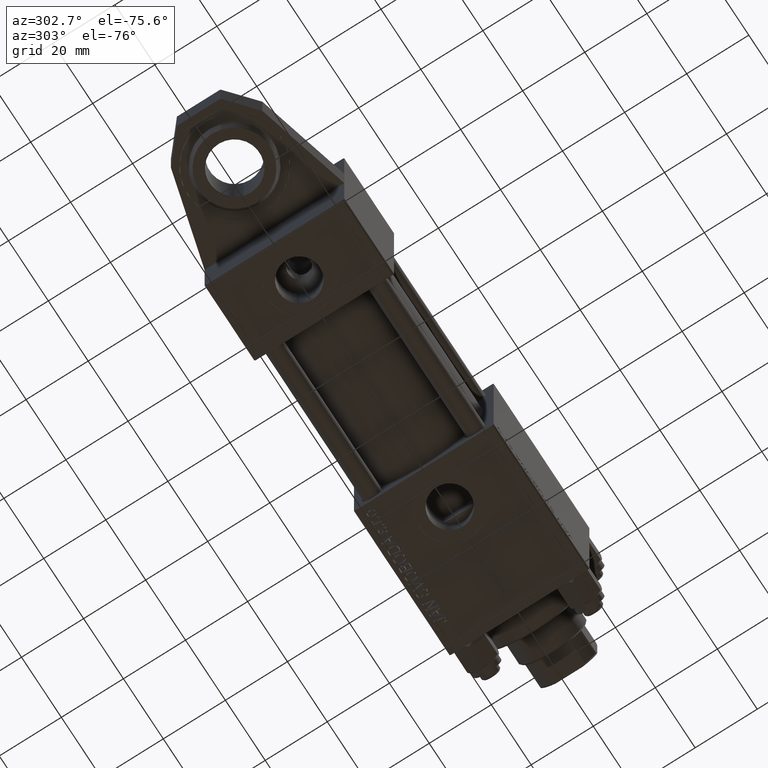
[diagram: clean part render]
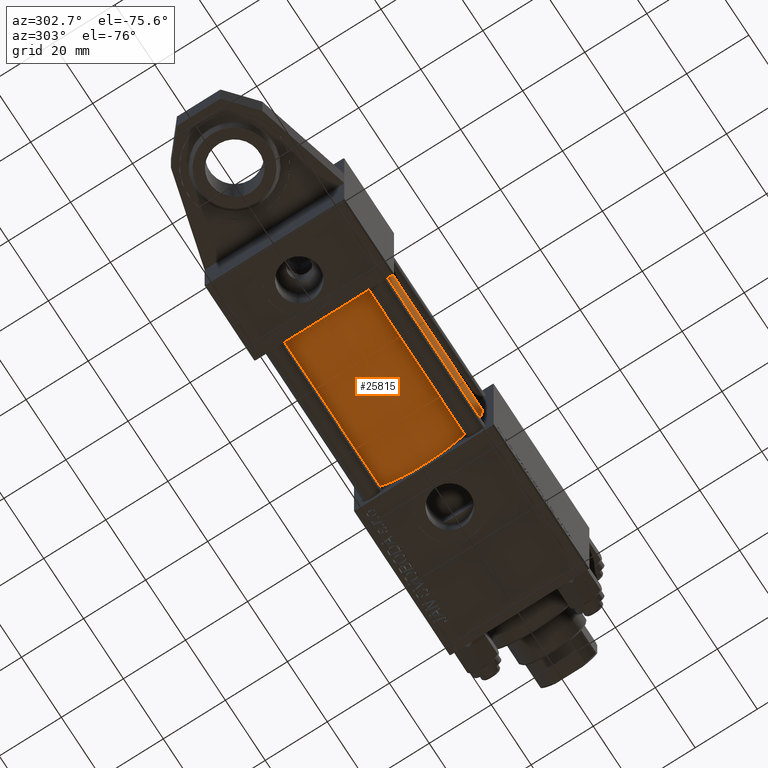
[diagram: same view with one face highlighted and labeled with its STEP entity id]
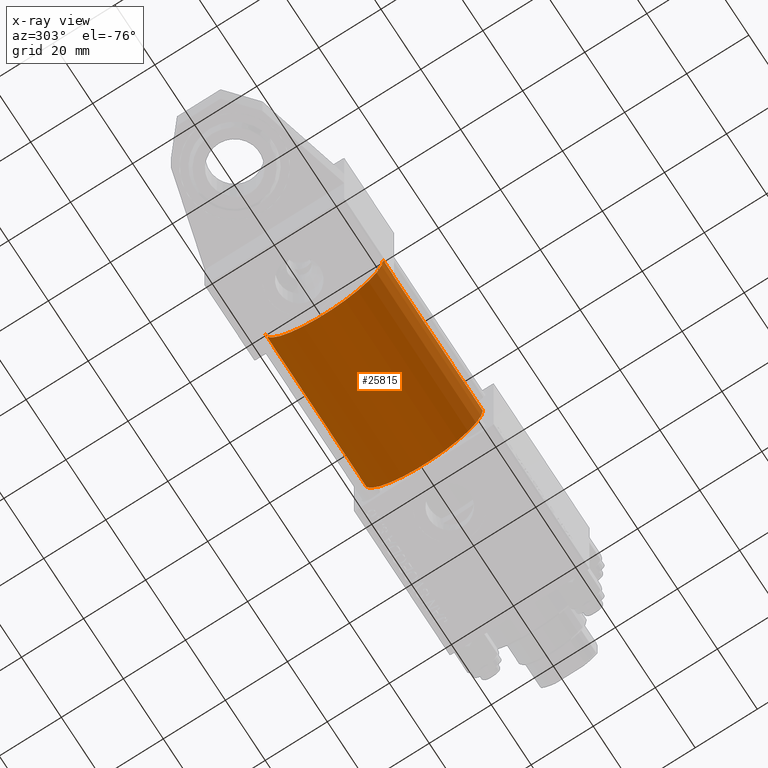
[diagram: x-ray of the same camera — body ghosted, the highlighted face saturated]
A machine part, auxiliary view. The second image highlights one B-rep face of the part: STEP entity #25815.
The next image is the same camera in x-ray: the body ghosted, the highlighted face saturated — about 0% of this face is hidden behind the body in this view.
In plain terms, the highlighted cylindrical surface (partial cylindrical patch) has radius 19 mm, axis along (-1, 0, -0).
Its self-contained STEP definition (entity closure, byte-faithful):
#763 = LINE ( 'NONE', #49076, #45956 ) ;
#1502 = ORIENTED_EDGE ( 'NONE', *, *, #31288, .T. ) ;
#4311 = DIRECTION ( 'NONE',  ( 0.000000000000000000, 0.000000000000000000, -1.000000000000000000 ) ) ;
#4671 = DIRECTION ( 'NONE',  ( 0.000000000000000000, 0.000000000000000000, 1.000000000000000000 ) ) ;
#4732 = CYLINDRICAL_SURFACE ( 'NONE', #33286, 19.00000000000000000 ) ;
#8436 = FACE_OUTER_BOUND ( 'NONE', #25541, .T. ) ;
#8514 = CARTESIAN_POINT ( 'NONE',  ( 75.00000000000001421, -2.602085213965210642E-15, 19.00000000000000000 ) ) ;
#9287 = CARTESIAN_POINT ( 'NONE',  ( 25.00000000000000000, -2.752562955852396712E-16, -19.00000000000000000 ) ) ;
#11199 = CARTESIAN_POINT ( 'NONE',  ( 75.00000000000001421, -2.602085213965210642E-15, 0.000000000000000000 ) ) ;
#11848 = AXIS2_PLACEMENT_3D ( 'NONE', #20756, #12858, #4671 ) ;
#12858 = DIRECTION ( 'NONE',  ( 1.000000000000000000, -0.000000000000000000, 0.000000000000000000 ) ) ;
#18771 = DIRECTION ( 'NONE',  ( 0.000000000000000000, 0.000000000000000000, 1.000000000000000000 ) ) ;
#20756 = CARTESIAN_POINT ( 'NONE',  ( 25.00000000000000000, -2.602085213965210642E-15, 0.000000000000000000 ) ) ;
#21540 = CARTESIAN_POINT ( 'NONE',  ( 25.00000000000000000, -2.602085213965210642E-15, 19.00000000000000000 ) ) ;
#21976 = CARTESIAN_POINT ( 'NONE',  ( 75.00000000000001421, -2.752562955852396712E-16, -19.00000000000000000 ) ) ;
#22911 = EDGE_CURVE ( 'NONE', #36575, #25145, #42479, .T. ) ;
#23101 = AXIS2_PLACEMENT_3D ( 'NONE', #11199, #31517, #4311 ) ;
#24818 = ORIENTED_EDGE ( 'NONE', *, *, #45899, .T. ) ;
#25040 = DIRECTION ( 'NONE',  ( -1.000000000000000000, -0.000000000000000000, -0.000000000000000000 ) ) ;
#25145 = VERTEX_POINT ( 'NONE', #21976 ) ;
#25250 = DIRECTION ( 'NONE',  ( -1.000000000000000000, -0.000000000000000000, -0.000000000000000000 ) ) ;
#25541 = EDGE_LOOP ( 'NONE', ( #37251, #35493, #1502, #24818 ) ) ;
#25815 = ADVANCED_FACE ( 'NONE', ( #8436 ), #4732, .T. ) ;
#25875 = EDGE_CURVE ( 'NONE', #25145, #27770, #763, .T. ) ;
#27770 = VERTEX_POINT ( 'NONE', #9287 ) ;
#28339 = VECTOR ( 'NONE', #25250, 1000.000000000000000 ) ;
#28964 = LINE ( 'NONE', #48765, #28339 ) ;
#31288 = EDGE_CURVE ( 'NONE', #36575, #31518, #28964, .T. ) ;
#31517 = DIRECTION ( 'NONE',  ( 1.000000000000000000, 0.000000000000000000, 0.000000000000000000 ) ) ;
#31518 = VERTEX_POINT ( 'NONE', #21540 ) ;
#33286 = AXIS2_PLACEMENT_3D ( 'NONE', #49329, #44858, #18771 ) ;
#35493 = ORIENTED_EDGE ( 'NONE', *, *, #22911, .F. ) ;
#36575 = VERTEX_POINT ( 'NONE', #8514 ) ;
#37251 = ORIENTED_EDGE ( 'NONE', *, *, #25875, .F. ) ;
#42479 = CIRCLE ( 'NONE', #23101, 19.00000000000000000 ) ;
#44858 = DIRECTION ( 'NONE',  ( -1.000000000000000000, -0.000000000000000000, -0.000000000000000000 ) ) ;
#45899 = EDGE_CURVE ( 'NONE', #31518, #27770, #50629, .T. ) ;
#45956 = VECTOR ( 'NONE', #25040, 1000.000000000000000 ) ;
#48765 = CARTESIAN_POINT ( 'NONE',  ( 75.00000000000001421, -2.602085213965210642E-15, 19.00000000000000000 ) ) ;
#49076 = CARTESIAN_POINT ( 'NONE',  ( 75.00000000000001421, -2.752562955852396712E-16, -19.00000000000000000 ) ) ;
#49329 = CARTESIAN_POINT ( 'NONE',  ( 75.00000000000001421, -2.602085213965210642E-15, 0.000000000000000000 ) ) ;
#50629 = CIRCLE ( 'NONE', #11848, 19.00000000000000000 ) ;